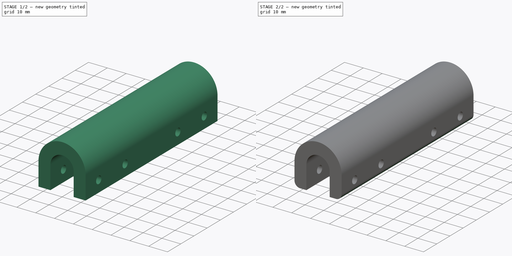
[diagram: build sequence overview — one tinted view per stage of 2, left to right]
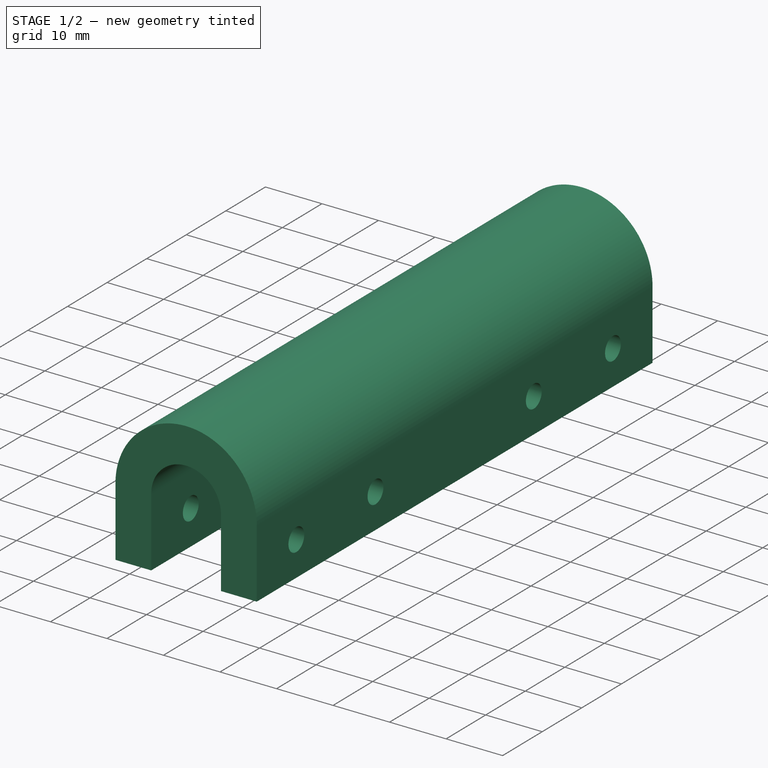
[diagram: stage 1 of 2 — iso view after this stage's code; geometry added in this stage tinted green]
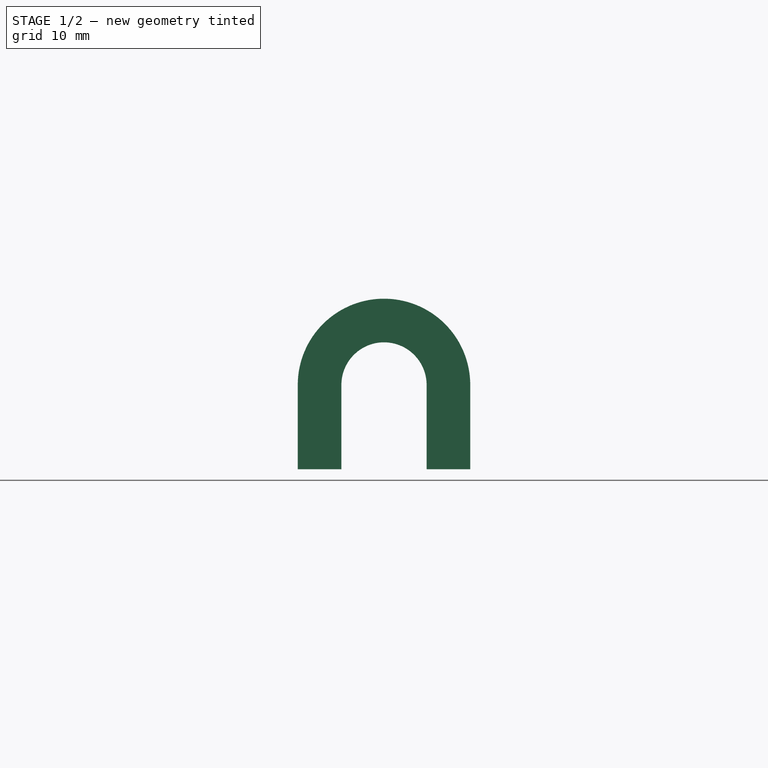
[diagram: stage 1 of 2 — front view after this stage's code; geometry added in this stage tinted green]
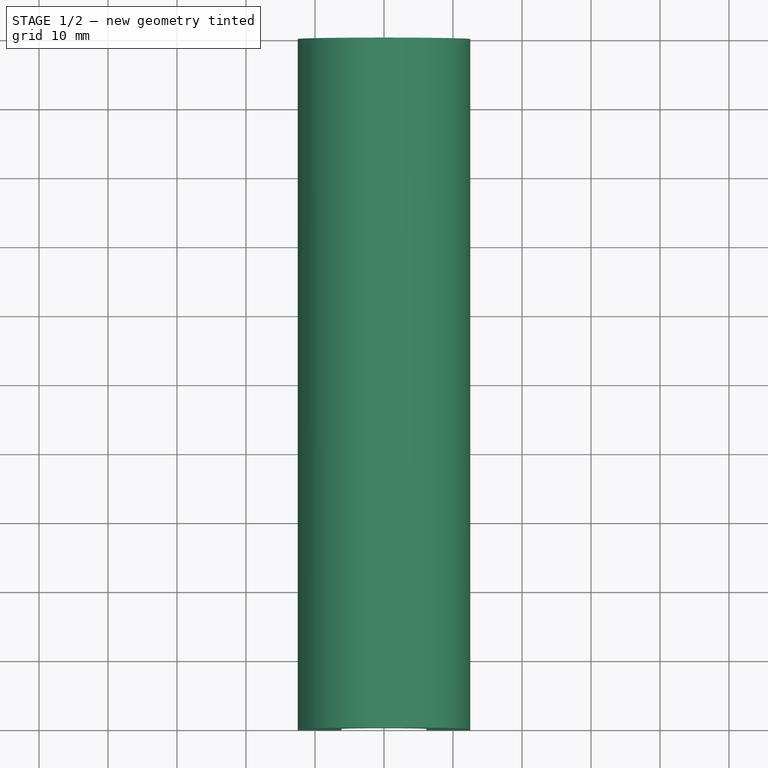
[diagram: stage 1 of 2 — top view after this stage's code; geometry added in this stage tinted green]
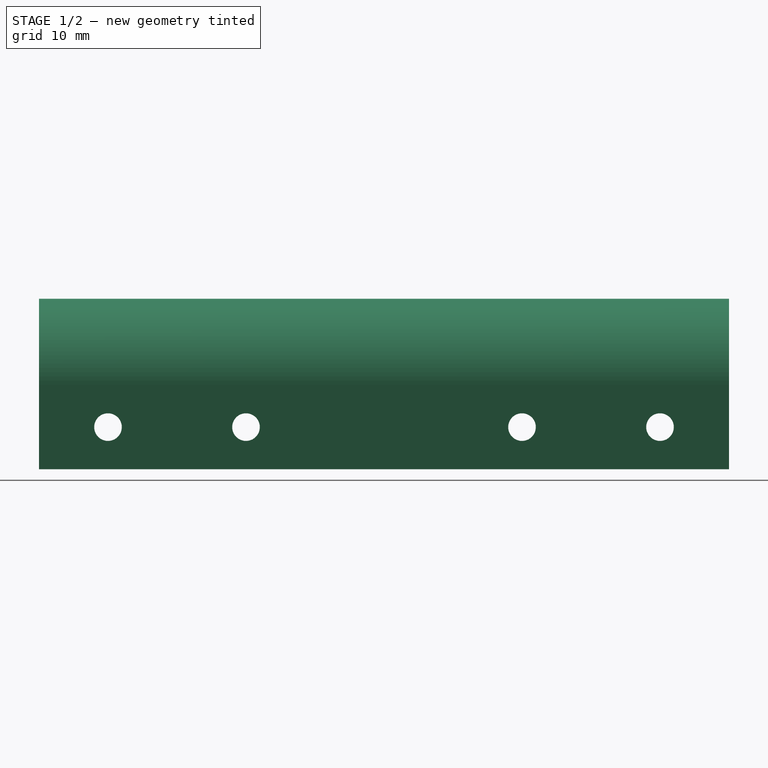
[diagram: stage 1 of 2 — right view after this stage's code; geometry added in this stage tinted green]
FCSTD DOCUMENT  (FreeCAD 2024.2R37179 (Git))
Label: Model
License: All rights reserved
LicenseURL: https://en.wikipedia.org/wiki/All_rights_reserved
objects: Sketcher::SketchObject×2, PartDesign::Pad×1, PartDesign::Pocket×1, PartDesign::Fillet×1, PartDesign::Body×1
note: 9 computed .brp shape members not serialized (recipe doc carries the construction recipe); baked Part::Feature solids carry a one-line shape summary decoded from their .brp

FEATURE [Sketcher::SketchObject] Sketch
  AttachmentSupport = -> [XZ_Plane]
  FullyConstrained = true
  MapMode = 5
  Placement = pos=(0,0,0) rot=(1,0,0;1.5708rad)
  expr: Constraints[8] = 18.4 - 12.35 / 2
  sketch-geometry (8):
    g0: LineSegment StartX=-6.175 StartY=0 StartZ=0 EndX=-6.175 EndY=12.225 EndZ=0
    g1: ArcOfCircle CenterX=0 CenterY=12.225 CenterZ=0 NormalX=0 NormalY=0 NormalZ=1 AngleXU=0 Radius=6.175 StartAngle=1e-16 EndAngle=3.14159
    g2: LineSegment StartX=6.175 StartY=12.225 StartZ=0 EndX=6.175 EndY=0 EndZ=0
    g3: LineSegment StartX=-12.5 StartY=0 StartZ=0 EndX=-12.5 EndY=12.225 EndZ=0
    g4: LineSegment StartX=12.5 StartY=0 StartZ=0 EndX=12.5 EndY=12.225 EndZ=0
    g5: ArcOfCircle CenterX=0 CenterY=12.225 CenterZ=0 NormalX=0 NormalY=0 NormalZ=1 AngleXU=0 Radius=12.5 StartAngle=0 EndAngle=3.14159
    g6: LineSegment StartX=-12.5 StartY=0 StartZ=0 EndX=-6.175 EndY=0 EndZ=0
    g7: LineSegment StartX=6.175 StartY=0 StartZ=0 EndX=12.5 EndY=0 EndZ=0
  constraints (24):
    c: PointOnObject(g0,g-1)
    c: Vertical(g0)
    c: PointOnObject(g1,g-2)
    c: Coincident(g1,g0)
    c: Horizontal(g0,g1)
    c: Horizontal(g1,g1)
    c: Tangent(g1,g2) = 1.5708
    c: Diameter(g1) = 12.35
    c: DistanceY(g2,g2) = 12.225
    c: PointOnObject(g3,g-1)
    c: Vertical(g3)
    c: PointOnObject(g4,g-1)
    c: Vertical(g4)
    c: Coincident(g5,g1)
    c: Coincident(g5,g3)
    c: Coincident(g5,g4)
    c: Diameter(g5) = 25
    c: Coincident(g3,g6)
    c: Coincident(g6,g0)
    c: Coincident(g2,g7)
    c: Coincident(g7,g4)
    c: Horizontal(g7)
    c: Horizontal(g3,g1)
    c: Horizontal(g1,g4)
FEATURE [PartDesign::Pad] Pad
  Direction = (0,-1,2e-16)
  Length = 100
  Length2 = 10
  Placement = pos=(0,0,0) rot=(1,0,0;1.5708rad)
  Profile = -> Sketch
  ReferenceAxis = -> Sketch [N_Axis]
  Refine = true
  Suppressed = false
  Type = 0
FEATURE [Sketcher::SketchObject] Sketch001
  AttachmentSupport = -> [Pad]
  ExternalGeometry = -> [Pad]
  FullyConstrained = true
  MapMode = 5
  Placement = pos=(12.5,0,0) rot=(0.707107,0,0.707107;3.14159rad)
  sketch-geometry (5):
    g0: Circle CenterX=6.1125 CenterY=10 CenterZ=0 NormalX=0 NormalY=0 NormalZ=1 AngleXU=0 Radius=2
    g1: Circle CenterX=6.1125 CenterY=90 CenterZ=0 NormalX=0 NormalY=0 NormalZ=1 AngleXU=0 Radius=2
    g2: GeomPoint X=6.1125 Y=100 Z=0
    g3: Circle CenterX=6.1125 CenterY=70 CenterZ=0 NormalX=0 NormalY=0 NormalZ=1 AngleXU=0 Radius=2
    g4: Circle CenterX=6.1125 CenterY=30 CenterZ=0 NormalX=0 NormalY=0 NormalZ=1 AngleXU=0 Radius=2
  constraints (13):
    c: DistanceY(g1,g-3) = 10
    c: DistanceY(g-3,g0) = 10
    c: Equal(g1,g0)
    c: Diameter(g1) = 4
    c: Symmetric(g-4,g-4,g2)
    c: Equal(g1,g3)
    c: Equal(g3,g4)
    c: Vertical(g2,g1)
    c: Vertical(g1,g3)
    c: Vertical(g3,g4)
    c: Vertical(g4,g0)
    c: DistanceY(g3,g-4) = 30
    c: DistanceY(g-3,g4) = 30
FEATURE [PartDesign::Pocket] Pocket
  BaseFeature = -> Pad
  Direction = (-1,0,2e-16)
  Length = 5
  Length2 = 5
  Placement = pos=(0,0,0) rot=(1,0,0;1.5708rad)
  Profile = -> Sketch001
  ReferenceAxis = -> Sketch001 [N_Axis]
  Refine = true
  Suppressed = false
  Type = 1
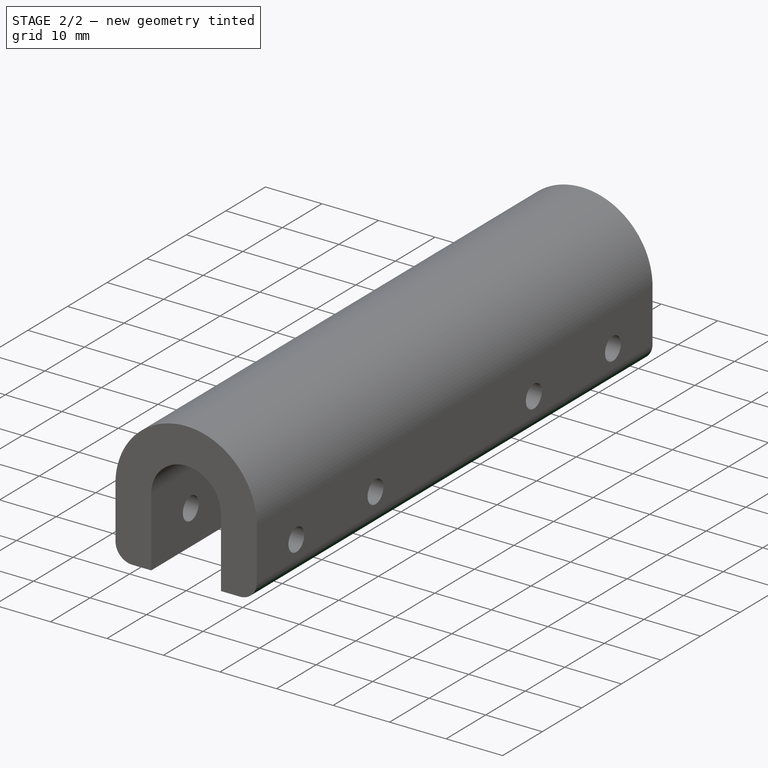
[diagram: stage 2 of 2 — iso view after this stage's code; geometry added in this stage tinted green]
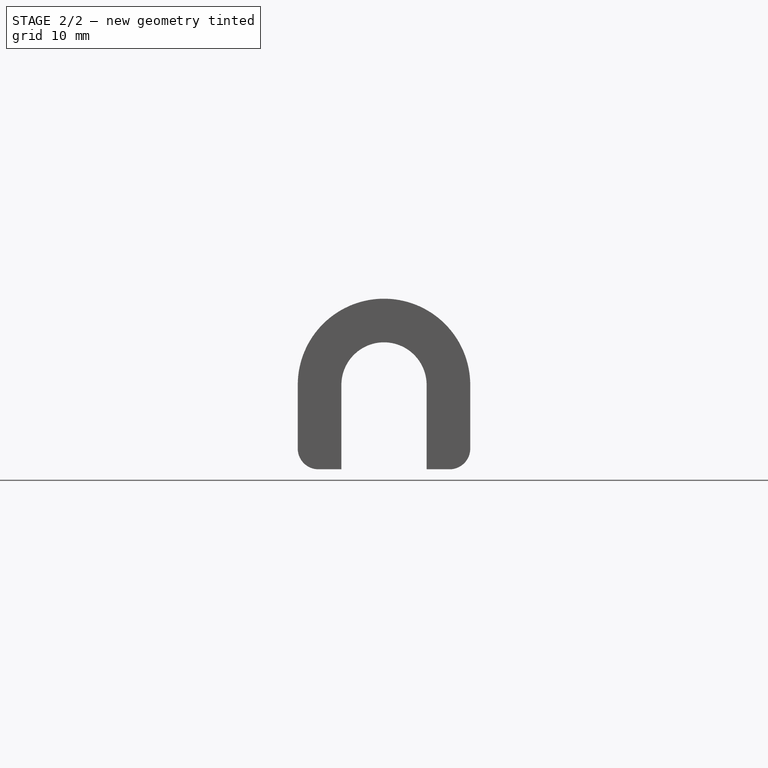
[diagram: stage 2 of 2 — front view after this stage's code; geometry added in this stage tinted green]
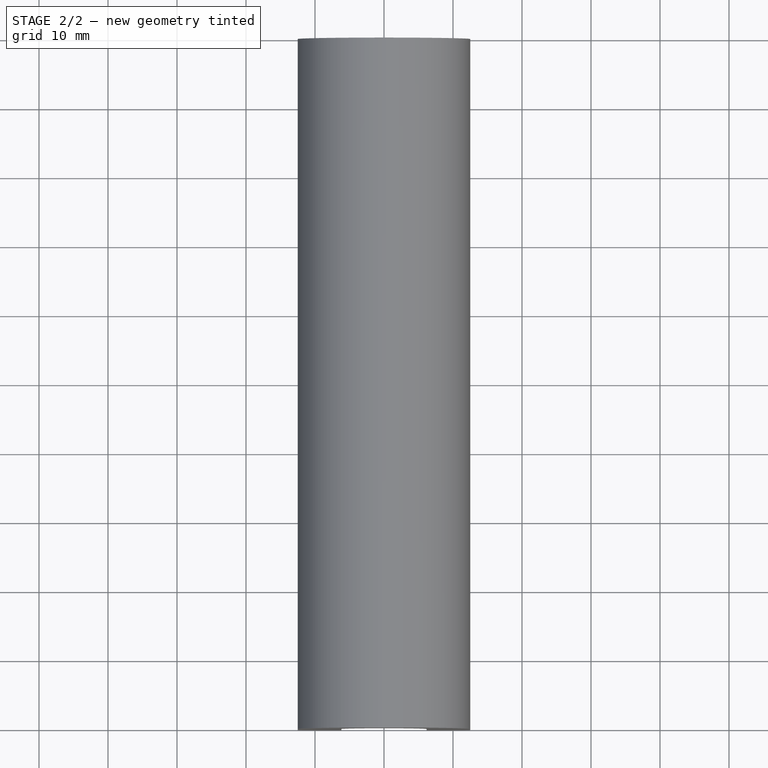
[diagram: stage 2 of 2 — top view after this stage's code; geometry added in this stage tinted green]
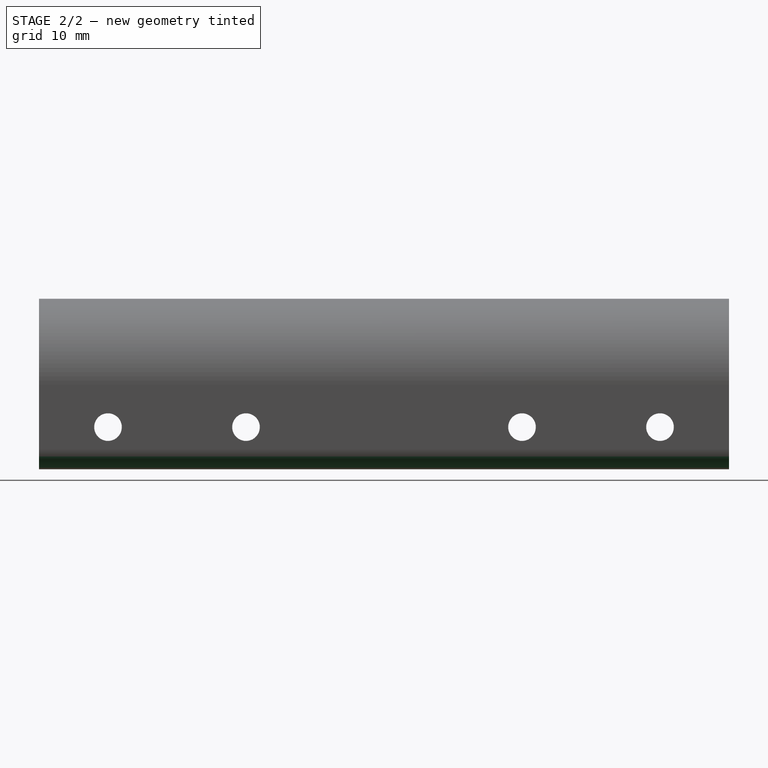
[diagram: stage 2 of 2 — right view after this stage's code; geometry added in this stage tinted green]
FEATURE [PartDesign::Fillet] Fillet
  Base = -> Pocket [Edge40,Edge1]
  BaseFeature = -> Pocket
  Placement = pos=(0,0,0) rot=(1,0,0;1.5708rad)
  Radius = 3
  Refine = true
  SupportTransform = false
  Suppressed = false
  UseAllEdges = false
FEATURE [PartDesign::Body] Body
  Group = -> [Sketch,Pad,Sketch001,Pocket,Fillet]
  Origin = -> Origin
  Tip = -> Fillet
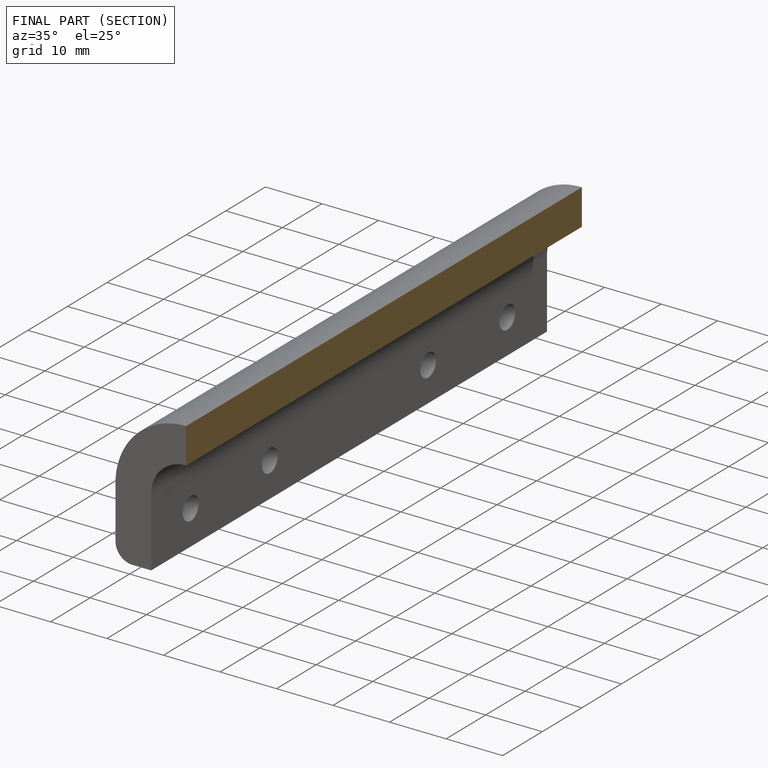
[diagram: finished part — half-section view (interior)]
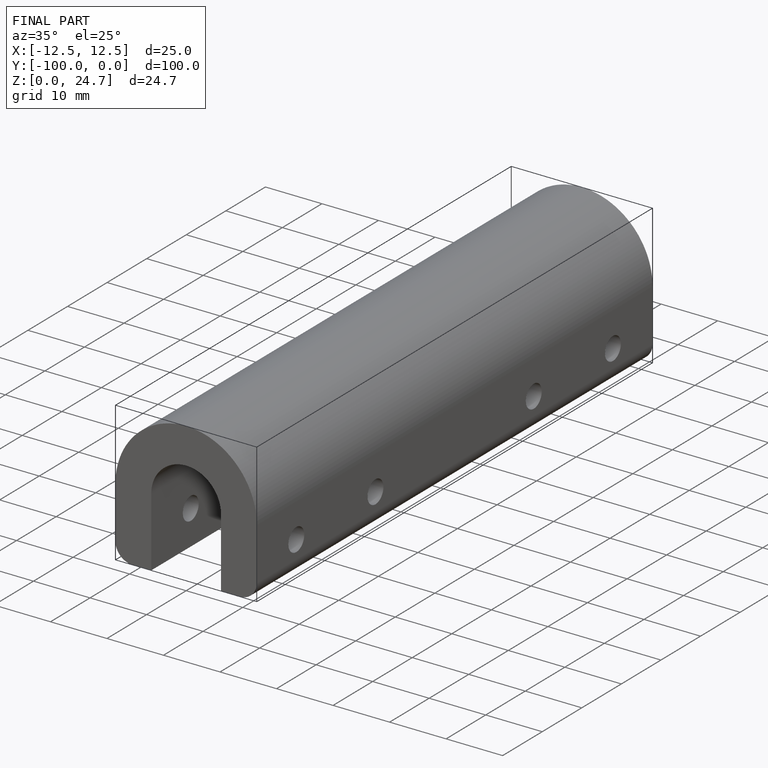
[diagram: finished part — iso view with bounding-box wireframe]
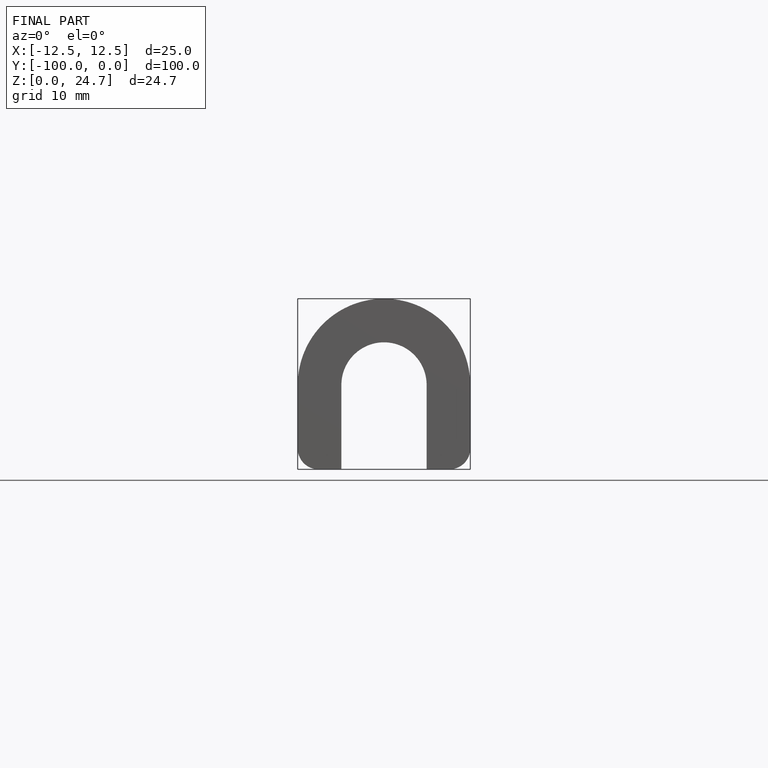
[diagram: finished part — front view with bounding-box wireframe]
